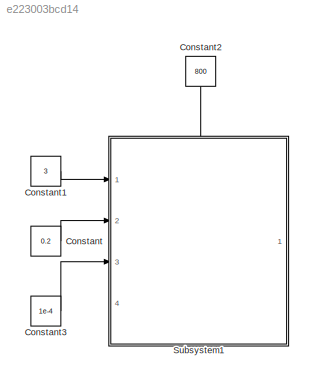
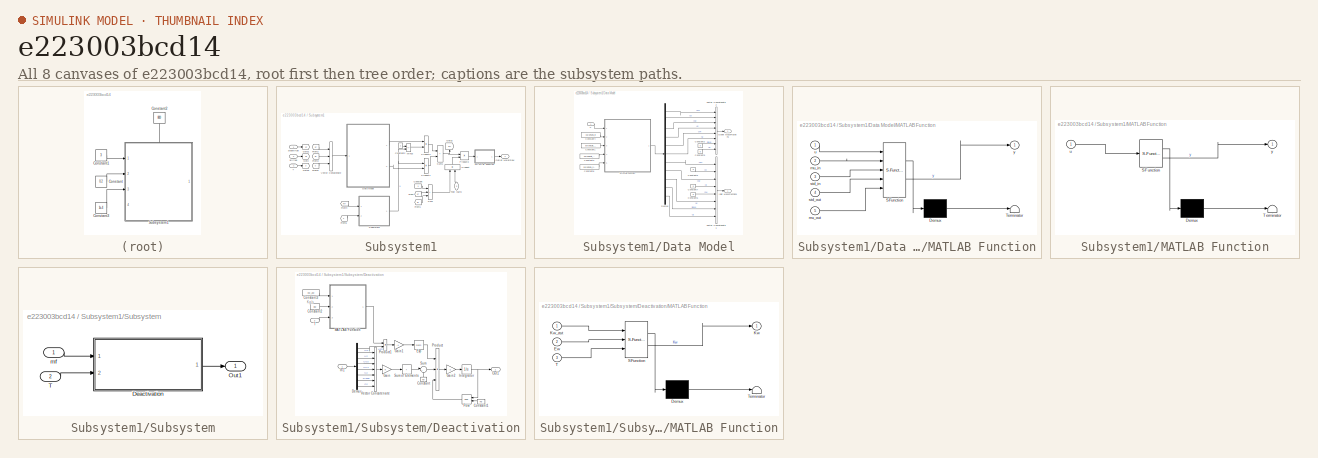
[diagram: thumbnail index - all 8 canvases of the model, root first then tree order]
MODEL slx_e223003bcd14
KIND model
CONFIG AbsTol = auto
CONFIG EnableMultiTasking = off
CONFIG FixedStep = auto
CONFIG MaxStep = auto
CONFIG MinStep = auto
CONFIG RelTol = 1e-3
CONFIG SampleTimeConstraint = Unconstrained
CONFIG SolverName = VariableStepAuto
CONFIG StartTime = 0.0
CONFIG StopTime = 100
BLOCK [Constant] Constant
  Value = 0.2
BLOCK [Constant] Constant1
  Value = 3
BLOCK [Constant] Constant2
  NameLocation = left
  Value = 800
BLOCK [Constant] Constant3
  Value = 1e-4
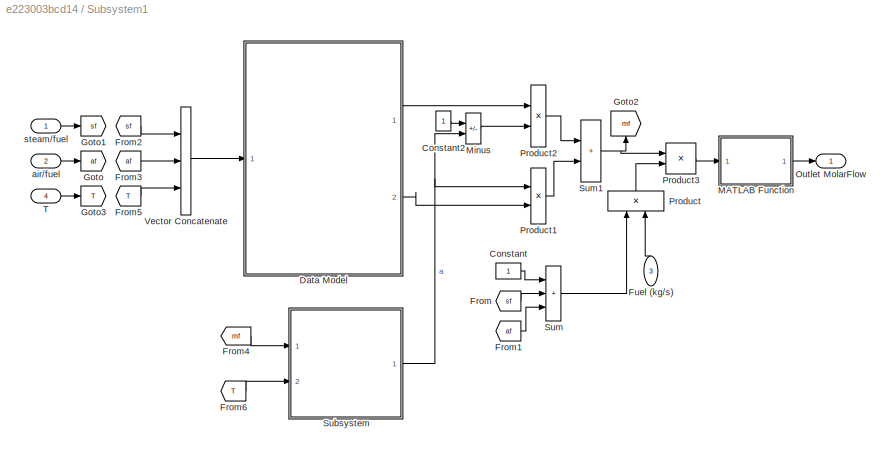
BLOCK [SubSystem] Subsystem1
  PortSchema = {"entries":[{"content":{"sides":[{"content":{"connectorIds":["In1","In2","In3"]},"type":"ConnectorPlacement.EquallySpacedRectSide","uuid":"bba98e9a-4a8f-433d-80b6-6443373beb37"},{"content":{"connectorIds":["Out1"],"side":"RIGHT"},"type":"ConnectorPlacement.EquallySpacedRectSide","uuid":"bb8208fa-3ad6-4550-bb87-9c458da504c5"},{"content":{"connectorIds":["In4"],"side":"TOP"},"type":"ConnectorPlaceme...<+257ch>
  Ports = [4, 1]
  RequestExecContextInheritance = off
BLOCK [Constant] Subsystem1/Constant
BLOCK [Constant] Subsystem1/Constant2
BLOCK [SubSystem] Subsystem1/Data Model
  Ports = [1, 2]
  RequestExecContextInheritance = off
BLOCK [Constant] Subsystem1/Data Model/Constant1
  Value = params.std_in
BLOCK [Constant] Subsystem1/Data Model/Constant2
  Value = 0
BLOCK [Constant] Subsystem1/Data Model/Constant3
  Value = params.std_out
BLOCK [Constant] Subsystem1/Data Model/Constant4
  Value = params.mu_in
BLOCK [Constant] Subsystem1/Data Model/Constant5
  Value = 0
BLOCK [Constant] Subsystem1/Data Model/Constant6
  Value = 0
BLOCK [Constant] Subsystem1/Data Model/Constant7
  Value = 0
BLOCK [Constant] Subsystem1/Data Model/Constant8
  Value = params.mu_out
BLOCK [Constant] Subsystem1/Data Model/Constant9
  Value = 0
BLOCK [Demux] Subsystem1/Data Model/Demux
  Outputs = 11
  Ports = [1, 11]
BLOCK [Outport] Subsystem1/Data Model/Inlet MassFractions
BLOCK [SubSystem] Subsystem1/Data Model/MATLAB Function
  ErrorFcn = Stateflow.Translate.translate
  PermitHierarchicalResolution = ExplicitOnly
  Ports = [5, 1]
  RequestExecContextInheritance = off
  SFBlockType = MATLAB Function
  TreatAsAtomicUnit = on
BLOCK [Demux] Subsystem1/Data Model/MATLAB Function/ Demux 
  Outputs = 1
  Ports = [1, 1]
BLOCK [S-Function] Subsystem1/Data Model/MATLAB Function/ SFunction 
  EnableBusSupport = on
  FunctionName = sf_sfun
  PortCounts = [5 2]
  Ports = [5, 2]
  SFcnIsStateOwnerBlock = off
  SFunctionDeploymentMode = off
  Tag = Stateflow S-Function 2
BLOCK [Terminator] Subsystem1/Data Model/MATLAB Function/ Terminator 
BLOCK [Inport] Subsystem1/Data Model/MATLAB Function/mu_in
  Port = 2
BLOCK [Inport] Subsystem1/Data Model/MATLAB Function/mu_out
  Port = 5
BLOCK [Inport] Subsystem1/Data Model/MATLAB Function/std_in
  Port = 3
BLOCK [Inport] Subsystem1/Data Model/MATLAB Function/std_out
  Port = 4
BLOCK [Inport] Subsystem1/Data Model/MATLAB Function/u
BLOCK [Outport] Subsystem1/Data Model/MATLAB Function/y
BLOCK [Outport] Subsystem1/Data Model/Outlet MassFractions
  Port = 2
BLOCK [Concatenate] Subsystem1/Data Model/Vector Concatenate1
  NumInputs = 8
  Ports = [8, 1]
BLOCK [Concatenate] Subsystem1/Data Model/Vector Concatenate2
  NumInputs = 8
  Ports = [8, 1]
BLOCK [Inport] Subsystem1/Data Model/u
BLOCK [From] Subsystem1/From
  GotoTag = sf
BLOCK [From] Subsystem1/From1
  GotoTag = af
BLOCK [From] Subsystem1/From2
  GotoTag = sf
BLOCK [From] Subsystem1/From3
  GotoTag = af
BLOCK [From] Subsystem1/From4
  GotoTag = mf
BLOCK [From] Subsystem1/From5
  GotoTag = T
BLOCK [From] Subsystem1/From6
  GotoTag = T
BLOCK [Inport] Subsystem1/Fuel (kg//s)
  NameLocation = right
  Port = 3
BLOCK [Goto] Subsystem1/Goto
  GotoTag = af
BLOCK [Goto] Subsystem1/Goto1
  GotoTag = sf
BLOCK [Goto] Subsystem1/Goto2
  GotoTag = mf
  NameLocation = right
BLOCK [Goto] Subsystem1/Goto3
  GotoTag = T
BLOCK [SubSystem] Subsystem1/MATLAB Function
  ErrorFcn = Stateflow.Translate.translate
  PermitHierarchicalResolution = ExplicitOnly
  Ports = [1, 1]
  RequestExecContextInheritance = off
  SFBlockType = MATLAB Function
  TreatAsAtomicUnit = on
BLOCK [Demux] Subsystem1/MATLAB Function/ Demux 
  Outputs = 1
  Ports = [1, 1]
BLOCK [S-Function] Subsystem1/MATLAB Function/ SFunction 
  EnableBusSupport = on
  FunctionName = sf_sfun
  PortCounts = [1 2]
  Ports = [1, 2]
  SFcnIsStateOwnerBlock = off
  SFunctionDeploymentMode = off
  Tag = Stateflow S-Function 1
BLOCK [Terminator] Subsystem1/MATLAB Function/ Terminator 
BLOCK [Inport] Subsystem1/MATLAB Function/u
BLOCK [Outport] Subsystem1/MATLAB Function/y
BLOCK [Sum] Subsystem1/Minus
  IconShape = rectangular
  Inputs = +-
  Ports = [2, 1]
BLOCK [Outport] Subsystem1/Outlet MolarFlow
BLOCK [Product] Subsystem1/Product
  NameLocation = right
  Ports = [2, 1]
BLOCK [Product] Subsystem1/Product1
  Ports = [2, 1]
BLOCK [Product] Subsystem1/Product2
  Ports = [2, 1]
BLOCK [Product] Subsystem1/Product3
  Ports = [2, 1]
BLOCK [SubSystem] Subsystem1/Subsystem
  Ports = [2, 1]
  RequestExecContextInheritance = off
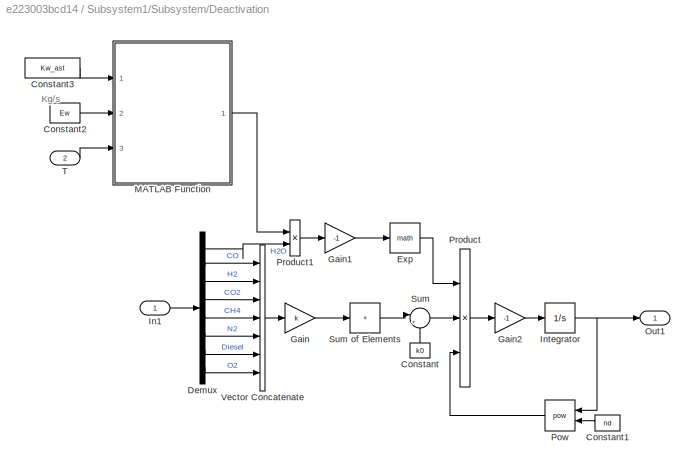
BLOCK [SubSystem] Subsystem1/Subsystem/Deactivation
  Ports = [2, 1]
  RequestExecContextInheritance = off
BLOCK [Constant] Subsystem1/Subsystem/Deactivation/Constant
  NameLocation = right
  Value = k0
BLOCK [Constant] Subsystem1/Subsystem/Deactivation/Constant1
  NameLocation = top
  Value = nd
BLOCK [Constant] Subsystem1/Subsystem/Deactivation/Constant2
  Value = Ew
BLOCK [Constant] Subsystem1/Subsystem/Deactivation/Constant3
  Value = Kw_ast
BLOCK [Demux] Subsystem1/Subsystem/Deactivation/Demux
  Outputs = 8
  Ports = [1, 8]
BLOCK [Math] Subsystem1/Subsystem/Deactivation/Exp
  Ports = [1, 1]
BLOCK [Gain] Subsystem1/Subsystem/Deactivation/Gain
  Gain = k
BLOCK [Gain] Subsystem1/Subsystem/Deactivation/Gain1
  Gain = -1
BLOCK [Gain] Subsystem1/Subsystem/Deactivation/Gain2
  Gain = -1
BLOCK [Inport] Subsystem1/Subsystem/Deactivation/In1
BLOCK [Integrator] Subsystem1/Subsystem/Deactivation/Integrator
  InitialCondition = 1
  Ports = [1, 1]
BLOCK [SubSystem] Subsystem1/Subsystem/Deactivation/MATLAB Function
  ErrorFcn = Stateflow.Translate.translate
  PermitHierarchicalResolution = ExplicitOnly
  Ports = [3, 1]
  RequestExecContextInheritance = off
  SFBlockType = MATLAB Function
  TreatAsAtomicUnit = on
BLOCK [Demux] Subsystem1/Subsystem/Deactivation/MATLAB Function/ Demux 
  Outputs = 1
  Ports = [1, 1]
BLOCK [S-Function] Subsystem1/Subsystem/Deactivation/MATLAB Function/ SFunction 
  EnableBusSupport = on
  FunctionName = sf_sfun
  PortCounts = [3 2]
  Ports = [3, 2]
  SFcnIsStateOwnerBlock = off
  SFunctionDeploymentMode = off
  Tag = Stateflow S-Function 3
BLOCK [Terminator] Subsystem1/Subsystem/Deactivation/MATLAB Function/ Terminator 
BLOCK [Inport] Subsystem1/Subsystem/Deactivation/MATLAB Function/Ew
  Port = 2
BLOCK [Outport] Subsystem1/Subsystem/Deactivation/MATLAB Function/Kw
BLOCK [Inport] Subsystem1/Subsystem/Deactivation/MATLAB Function/Kw_ast
BLOCK [Inport] Subsystem1/Subsystem/Deactivation/MATLAB Function/T
  Port = 3
BLOCK [Outport] Subsystem1/Subsystem/Deactivation/Out1
BLOCK [Math] Subsystem1/Subsystem/Deactivation/Pow
  NameLocation = top
  Operator = pow
  Ports = [2, 1]
  RndMeth = Zero
BLOCK [Product] Subsystem1/Subsystem/Deactivation/Product
  Inputs = 3
  Ports = [3, 1]
BLOCK [Product] Subsystem1/Subsystem/Deactivation/Product1
  Ports = [2, 1]
BLOCK [Sum] Subsystem1/Subsystem/Deactivation/Sum
  Inputs = |++
  Ports = [2, 1]
BLOCK [Sum] Subsystem1/Subsystem/Deactivation/Sum of Elements
  IconShape = rectangular
  Inputs = +
  Ports = [1, 1]
BLOCK [Inport] Subsystem1/Subsystem/Deactivation/T
  Port = 2
BLOCK [Concatenate] Subsystem1/Subsystem/Deactivation/Vector Concatenate
  NumInputs = 7
  Ports = [7, 1]
BLOCK [Outport] Subsystem1/Subsystem/Out1
BLOCK [Inport] Subsystem1/Subsystem/T
  Port = 2
BLOCK [Inport] Subsystem1/Subsystem/mf
BLOCK [Sum] Subsystem1/Sum
  IconShape = rectangular
  Inputs = |+++
  Ports = [3, 1]
BLOCK [Sum] Subsystem1/Sum1
  IconShape = rectangular
  Inputs = |++
  Ports = [2, 1]
BLOCK [Inport] Subsystem1/T
  Port = 4
BLOCK [Concatenate] Subsystem1/Vector Concatenate
  NumInputs = 3
  Ports = [3, 1]
BLOCK [Inport] Subsystem1/air//fuel
  Port = 2
BLOCK [Inport] Subsystem1/steam//fuel
ANNOTATION Subsystem1/Subsystem/Deactivation: Kg/s
LINE Constant1:1 -> Subsystem1:1
LINE Constant2:1 -> Subsystem1:4
LINE Constant3:1 -> Subsystem1:3
LINE Constant:1 -> Subsystem1:2
LINE Subsystem1/Constant2:1 -> Subsystem1/Minus:1
LINE Subsystem1/Constant:1 -> Subsystem1/Sum:1
LINE Subsystem1/Data Model/Constant1:1 -> Subsystem1/Data Model/MATLAB Function:3
LINE Subsystem1/Data Model/Constant2:1 -> Subsystem1/Data Model/Vector Concatenate2:7
LINE Subsystem1/Data Model/Constant3:1 -> Subsystem1/Data Model/MATLAB Function:4
LINE Subsystem1/Data Model/Constant4:1 -> Subsystem1/Data Model/MATLAB Function:2
LINE Subsystem1/Data Model/Constant5:1 -> Subsystem1/Data Model/Vector Concatenate1:2
LINE Subsystem1/Data Model/Constant6:1 -> Subsystem1/Data Model/Vector Concatenate1:5
LINE Subsystem1/Data Model/Constant7:1 -> Subsystem1/Data Model/Vector Concatenate1:4
LINE Subsystem1/Data Model/Constant8:1 -> Subsystem1/Data Model/MATLAB Function:5
LINE Subsystem1/Data Model/Constant9:1 -> Subsystem1/Data Model/Vector Concatenate2:8
LINE Subsystem1/Data Model/Demux:1 -> Subsystem1/Data Model/Vector Concatenate2:1
LINE Subsystem1/Data Model/Demux:10 -> Subsystem1/Data Model/Vector Concatenate1:7
LINE Subsystem1/Data Model/Demux:11 -> Subsystem1/Data Model/Vector Concatenate1:8
LINE Subsystem1/Data Model/Demux:2 -> Subsystem1/Data Model/Vector Concatenate2:2
LINE Subsystem1/Data Model/Demux:3 -> Subsystem1/Data Model/Vector Concatenate2:3
LINE Subsystem1/Data Model/Demux:4 -> Subsystem1/Data Model/Vector Concatenate2:4
LINE Subsystem1/Data Model/Demux:5 -> Subsystem1/Data Model/Vector Concatenate2:5
LINE Subsystem1/Data Model/Demux:6 -> Subsystem1/Data Model/Vector Concatenate2:6
LINE Subsystem1/Data Model/Demux:7 -> Subsystem1/Data Model/Vector Concatenate1:1
LINE Subsystem1/Data Model/Demux:8 -> Subsystem1/Data Model/Vector Concatenate1:3
LINE Subsystem1/Data Model/Demux:9 -> Subsystem1/Data Model/Vector Concatenate1:6
LINE Subsystem1/Data Model/MATLAB Function:1 -> Subsystem1/Data Model/Demux:1
LINE Subsystem1/Data Model/Vector Concatenate1:1 -> Subsystem1/Data Model/Inlet MassFractions:1
LINE Subsystem1/Data Model/Vector Concatenate2:1 -> Subsystem1/Data Model/Outlet MassFractions:1
LINE Subsystem1/Data Model/u:1 -> Subsystem1/Data Model/MATLAB Function:1
LINE Subsystem1/Data Model:1 -> Subsystem1/Product2:1
LINE Subsystem1/Data Model:2 -> Subsystem1/Product1:2
LINE Subsystem1/From1:1 -> Subsystem1/Sum:3
LINE Subsystem1/From2:1 -> Subsystem1/Vector Concatenate:1
LINE Subsystem1/From3:1 -> Subsystem1/Vector Concatenate:2
LINE Subsystem1/From4:1 -> Subsystem1/Subsystem:1
LINE Subsystem1/From5:1 -> Subsystem1/Vector Concatenate:3
LINE Subsystem1/From6:1 -> Subsystem1/Subsystem:2
LINE Subsystem1/From:1 -> Subsystem1/Sum:2
LINE Subsystem1/Fuel (kg//s):1 -> Subsystem1/Product:2
LINE Subsystem1/MATLAB Function:1 -> Subsystem1/Outlet MolarFlow:1
LINE Subsystem1/Minus:1 -> Subsystem1/Product2:2
LINE Subsystem1/Product1:1 -> Subsystem1/Sum1:2
LINE Subsystem1/Product2:1 -> Subsystem1/Sum1:1
LINE Subsystem1/Product3:1 -> Subsystem1/MATLAB Function:1
LINE Subsystem1/Product:1 -> Subsystem1/Product3:2
LINE Subsystem1/Subsystem/Deactivation/Constant1:1 -> Subsystem1/Subsystem/Deactivation/Pow:2
LINE Subsystem1/Subsystem/Deactivation/Constant2:1 -> Subsystem1/Subsystem/Deactivation/MATLAB Function:2
LINE Subsystem1/Subsystem/Deactivation/Constant3:1 -> Subsystem1/Subsystem/Deactivation/MATLAB Function:1
LINE Subsystem1/Subsystem/Deactivation/Constant:1 -> Subsystem1/Subsystem/Deactivation/Sum:2
LINE Subsystem1/Subsystem/Deactivation/Demux:1 -> Subsystem1/Subsystem/Deactivation/Product1:2
LINE Subsystem1/Subsystem/Deactivation/Demux:2 -> Subsystem1/Subsystem/Deactivation/Vector Concatenate:1
LINE Subsystem1/Subsystem/Deactivation/Demux:3 -> Subsystem1/Subsystem/Deactivation/Vector Concatenate:2
LINE Subsystem1/Subsystem/Deactivation/Demux:4 -> Subsystem1/Subsystem/Deactivation/Vector Concatenate:3
LINE Subsystem1/Subsystem/Deactivation/Demux:5 -> Subsystem1/Subsystem/Deactivation/Vector Concatenate:4
LINE Subsystem1/Subsystem/Deactivation/Demux:6 -> Subsystem1/Subsystem/Deactivation/Vector Concatenate:5
LINE Subsystem1/Subsystem/Deactivation/Demux:7 -> Subsystem1/Subsystem/Deactivation/Vector Concatenate:6
LINE Subsystem1/Subsystem/Deactivation/Demux:8 -> Subsystem1/Subsystem/Deactivation/Vector Concatenate:7
LINE Subsystem1/Subsystem/Deactivation/Exp:1 -> Subsystem1/Subsystem/Deactivation/Product:1
LINE Subsystem1/Subsystem/Deactivation/Gain1:1 -> Subsystem1/Subsystem/Deactivation/Exp:1
LINE Subsystem1/Subsystem/Deactivation/Gain2:1 -> Subsystem1/Subsystem/Deactivation/Integrator:1
LINE Subsystem1/Subsystem/Deactivation/Gain:1 -> Subsystem1/Subsystem/Deactivation/Sum of Elements:1
LINE Subsystem1/Subsystem/Deactivation/In1:1 -> Subsystem1/Subsystem/Deactivation/Demux:1
NET Subsystem1/Subsystem/Deactivation/Integrator:1 -> Subsystem1/Subsystem/Deactivation/Out1:1, Subsystem1/Subsystem/Deactivation/Pow:1
LINE Subsystem1/Subsystem/Deactivation/MATLAB Function:1 -> Subsystem1/Subsystem/Deactivation/Product1:1
LINE Subsystem1/Subsystem/Deactivation/Pow:1 -> Subsystem1/Subsystem/Deactivation/Product:3
LINE Subsystem1/Subsystem/Deactivation/Product1:1 -> Subsystem1/Subsystem/Deactivation/Gain1:1
LINE Subsystem1/Subsystem/Deactivation/Product:1 -> Subsystem1/Subsystem/Deactivation/Gain2:1
LINE Subsystem1/Subsystem/Deactivation/Sum of Elements:1 -> Subsystem1/Subsystem/Deactivation/Sum:1
LINE Subsystem1/Subsystem/Deactivation/Sum:1 -> Subsystem1/Subsystem/Deactivation/Product:2
LINE Subsystem1/Subsystem/Deactivation/T:1 -> Subsystem1/Subsystem/Deactivation/MATLAB Function:3
LINE Subsystem1/Subsystem/Deactivation/Vector Concatenate:1 -> Subsystem1/Subsystem/Deactivation/Gain:1
LINE Subsystem1/Subsystem/Deactivation:1 -> Subsystem1/Subsystem/Out1:1
LINE Subsystem1/Subsystem/T:1 -> Subsystem1/Subsystem/Deactivation:2
LINE Subsystem1/Subsystem/mf:1 -> Subsystem1/Subsystem/Deactivation:1
NET Subsystem1/Subsystem:1 -> Subsystem1/Minus:2, Subsystem1/Product1:1
NET Subsystem1/Sum1:1 -> Subsystem1/Goto2:1, Subsystem1/Product3:1
LINE Subsystem1/Sum:1 -> Subsystem1/Product:1
LINE Subsystem1/T:1 -> Subsystem1/Goto3:1
LINE Subsystem1/Vector Concatenate:1 -> Subsystem1/Data Model:1
LINE Subsystem1/air//fuel:1 -> Subsystem1/Goto:1
LINE Subsystem1/steam//fuel:1 -> Subsystem1/Goto1:1
note: NET lines group one-source signal fan-out (src -> all destinations, sorted); 1:1 wires keep LINE
CHART Subsystem1/MATLAB Function states=1 transitions=1
  STATE_LABEL 'eML_blk_kernel()'
  STATE_LABEL 'SCRIPT:\nfunction y = fcn(u)\n\n\np.H2  = 2e-3;  % kg/mol\np.O2  = 32e-3; % kg/mol\np.H2O = 18e-3; % kg/mol\np.N2  = 28e-3; % kg/mol\np.CO  = 28e-3; % kg/mol\np.CH4 = 16e-3; % kg/mol\np.CO2 = 44e-3; % kg/mol\n%p.Air = 28.9647-3;\t % kg/mol;\np.Diesel = 142e-3;\t % kg/mol;\n\nH2O = u(1)/p.H2O;\nCO  = u(2)/p.CO;\nCO2 = u(3)/p.CO2;\nH2  = u(4)/p.H2;\nCH4 = u(5)/p.CH4;\nN2 = u(6)/p.N2;\nDiesel = u(7)/p.Diesel;\nO2 = u(8)/p....<+44ch>'
CHART Subsystem1/Data Model/MATLAB Function states=1 transitions=1
  STATE_LABEL 'eML_blk_kernel()'
  STATE_LABEL 'SCRIPT:\nfunction y = fcn(u,mu_in,std_in,std_out,mu_out)\n\ny = REFORMER_mf((u - mu_in)./std_in).*std_out + mu_out;\n'
CHART Subsystem1/Subsystem/Deactivation/MATLAB Function states=1 transitions=1
  STATE_LABEL 'eML_blk_kernel()'
  STATE_LABEL 'SCRIPT:\nfunction Kw = fcn(Kw_ast,Ew,T)\n\nR = 8.314472;% J/(mol K) \n\nKw = Kw_ast*exp(-Ew/R*(1/(T+273.15) - 1/573));\n'
CHART  states=0 transitions=0
CHART  states=0 transitions=0
CHART  states=0 transitions=0
